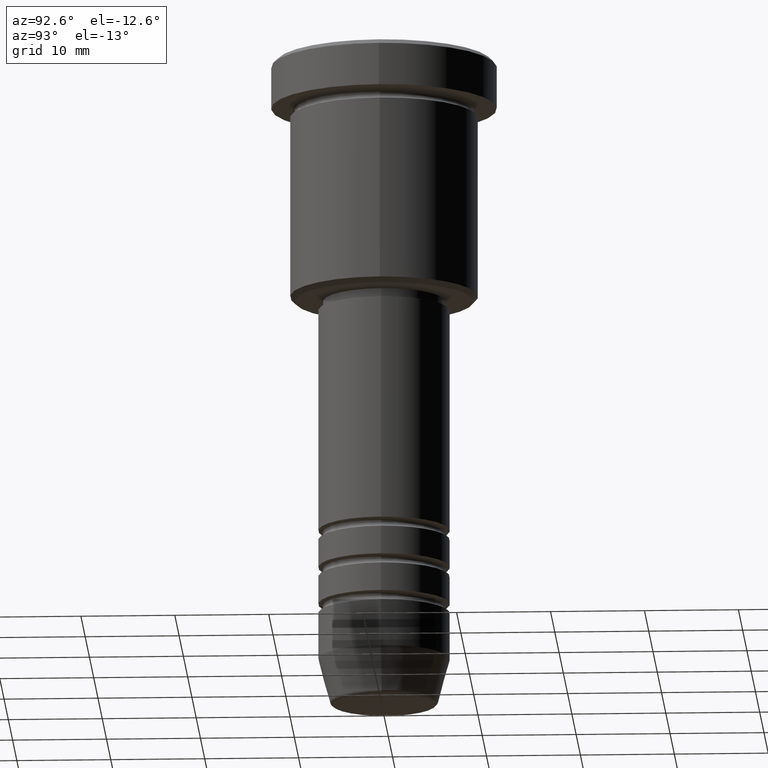
[diagram: clean part render]
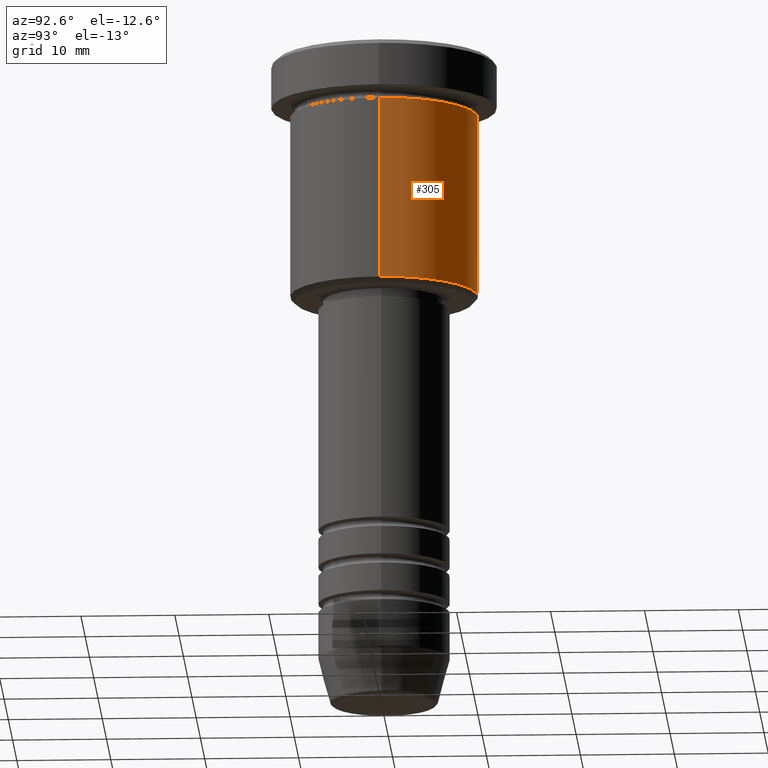
[diagram: same view with one face highlighted and labeled with its STEP entity id]
A machine part, auxiliary view. The second image highlights one B-rep face of the part: STEP entity #305.
In plain terms, the highlighted cylindrical surface (partial cylindrical patch) has radius 10 mm, axis along (-0, -0, 1).
Its self-contained STEP definition (entity closure, byte-faithful):
#16 = EDGE_CURVE ( 'NONE', #827, #826, #425, .T. ) ;
#66 = CYLINDRICAL_SURFACE ( 'NONE', #666, 9.999999999999998224 ) ;
#67 = CIRCLE ( 'NONE', #488, 10.00000000000000000 ) ;
#130 = AXIS2_PLACEMENT_3D ( 'NONE', #652, #1176, #288 ) ;
#148 = VERTEX_POINT ( 'NONE', #973 ) ;
#151 = DIRECTION ( 'NONE',  ( 1.000000000000000000, 0.000000000000000000, 0.000000000000000000 ) ) ;
#153 = DIRECTION ( 'NONE',  ( 1.000000000000000000, 0.000000000000000000, 0.000000000000000000 ) ) ;
#162 = VECTOR ( 'NONE', #911, 1000.000000000000000 ) ;
#177 = ORIENTED_EDGE ( 'NONE', *, *, #16, .F. ) ;
#201 = CARTESIAN_POINT ( 'NONE',  ( 10.00000000000000000, 0.000000000000000000, -6.000000000000000000 ) ) ;
#225 = ORIENTED_EDGE ( 'NONE', *, *, #753, .T. ) ;
#228 = EDGE_CURVE ( 'NONE', #148, #915, #1074, .T. ) ;
#252 = CARTESIAN_POINT ( 'NONE',  ( 0.000000000000000000, 0.000000000000000000, 0.000000000000000000 ) ) ;
#262 = CARTESIAN_POINT ( 'NONE',  ( -9.999999999999998224, 1.224646799147353059E-15, 0.000000000000000000 ) ) ;
#280 = ORIENTED_EDGE ( 'NONE', *, *, #228, .T. ) ;
#288 = DIRECTION ( 'NONE',  ( -1.000000000000000000, 0.000000000000000000, 0.000000000000000000 ) ) ;
#305 = ADVANCED_FACE ( 'NONE', ( #888 ), #66, .T. ) ;
#425 = LINE ( 'NONE', #432, #162 ) ;
#426 = DIRECTION ( 'NONE',  ( -0.000000000000000000, -0.000000000000000000, 1.000000000000000000 ) ) ;
#432 = CARTESIAN_POINT ( 'NONE',  ( 9.999999999999998224, 0.000000000000000000, 0.000000000000000000 ) ) ;
#488 = AXIS2_PLACEMENT_3D ( 'NONE', #601, #967, #151 ) ;
#531 = EDGE_LOOP ( 'NONE', ( #225, #280, #735, #177 ) ) ;
#581 = VECTOR ( 'NONE', #926, 1000.000000000000000 ) ;
#601 = CARTESIAN_POINT ( 'NONE',  ( 0.000000000000000000, 0.000000000000000000, -6.000000000000000000 ) ) ;
#652 = CARTESIAN_POINT ( 'NONE',  ( 0.000000000000000000, 0.000000000000000000, -25.49999999999998934 ) ) ;
#666 = AXIS2_PLACEMENT_3D ( 'NONE', #252, #426, #153 ) ;
#735 = ORIENTED_EDGE ( 'NONE', *, *, #954, .F. ) ;
#742 = CARTESIAN_POINT ( 'NONE',  ( 9.999999999999998224, 0.000000000000000000, -25.49999999999998934 ) ) ;
#753 = EDGE_CURVE ( 'NONE', #827, #148, #935, .T. ) ;
#826 = VERTEX_POINT ( 'NONE', #201 ) ;
#827 = VERTEX_POINT ( 'NONE', #742 ) ;
#888 = FACE_OUTER_BOUND ( 'NONE', #531, .T. ) ;
#911 = DIRECTION ( 'NONE',  ( -0.000000000000000000, -0.000000000000000000, 1.000000000000000000 ) ) ;
#915 = VERTEX_POINT ( 'NONE', #980 ) ;
#926 = DIRECTION ( 'NONE',  ( -0.000000000000000000, -0.000000000000000000, 1.000000000000000000 ) ) ;
#935 = CIRCLE ( 'NONE', #130, 9.999999999999998224 ) ;
#954 = EDGE_CURVE ( 'NONE', #826, #915, #67, .T. ) ;
#967 = DIRECTION ( 'NONE',  ( -0.000000000000000000, -0.000000000000000000, 1.000000000000000000 ) ) ;
#973 = CARTESIAN_POINT ( 'NONE',  ( -9.999999999999998224, 1.224646799147353059E-15, -25.49999999999998934 ) ) ;
#980 = CARTESIAN_POINT ( 'NONE',  ( -10.00000000000000000, 1.224646799147353256E-15, -6.000000000000000000 ) ) ;
#1074 = LINE ( 'NONE', #262, #581 ) ;
#1176 = DIRECTION ( 'NONE',  ( -0.000000000000000000, -0.000000000000000000, 1.000000000000000000 ) ) ;